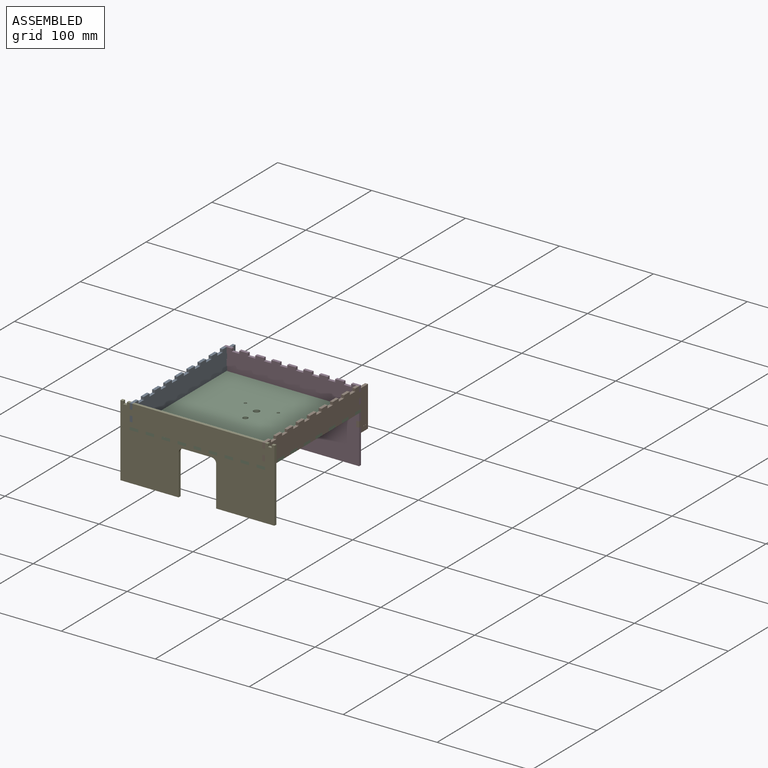
[diagram: assembled view]
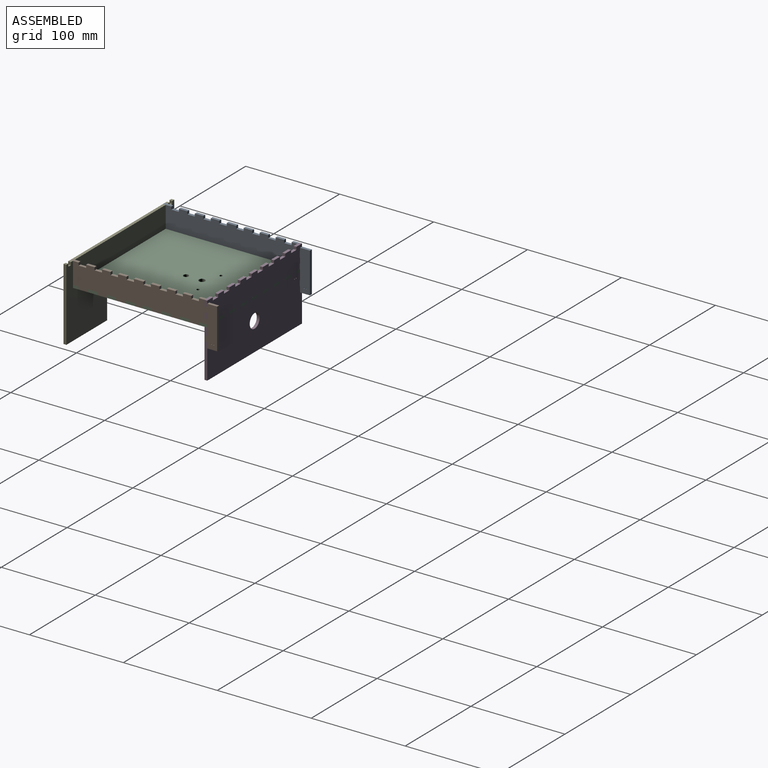
[diagram: assembled view, second angle]
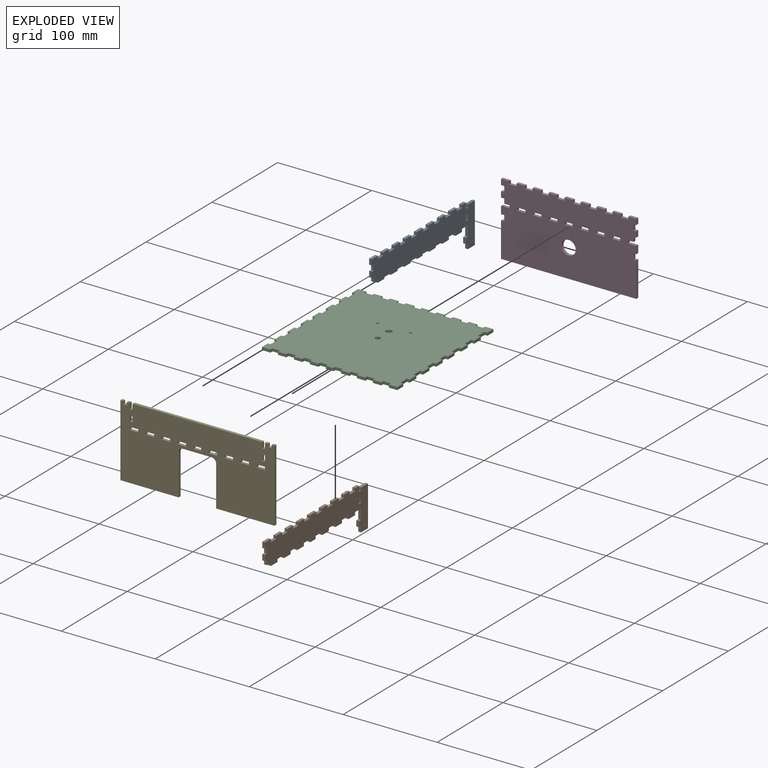
[diagram: exploded view]
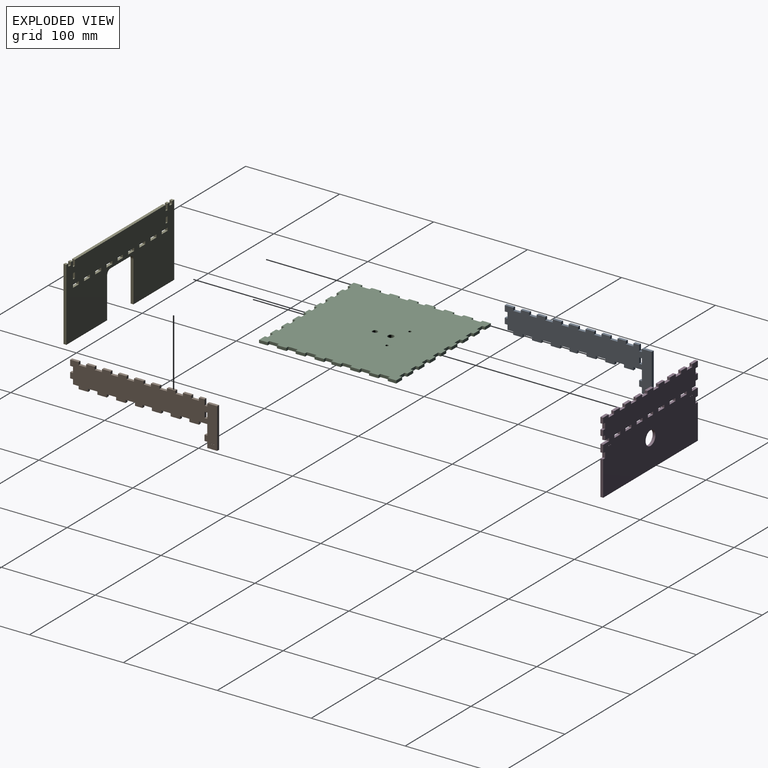
[diagram: exploded view, second angle]
ASSEMBLY  parts=5 mates=4
PART A: 88 faces, bbox 3x156.5x46 mm
  f0: plane 6x3mm, normal (0,1,0), area 18mm2, adj f1,f85,f86,f87
  f1: plane 3x3mm, normal (0,0,-1), area 9mm2, adj f0,f2,f86,f87
  f2: plane 6x3mm, normal (0,-1,0), area 18mm2, adj f1,f85,f86,f87
  f3: plane 43x3mm, normal (0,1,0), area 129mm2, adj f4,f84,f86,f87
  f4: plane 10.5x3mm, normal (0,0,1), area 31.5mm2, adj f3,f5,f86,f87
  f5: plane 3x3mm, normal (0,-1,0), area 9mm2, adj f4,f6,f86,f87
  f6: plane 3x3mm, normal (0,0,1), area 9mm2, adj f5,f7,f86,f87
  f7: plane 6x3mm, normal (0,1,0), area 18mm2, adj f6,f8,f86,f87
  f8: plane 6x3mm, normal (0,0,1), area 18mm2, adj f7,f9,f86,f87
  f9: plane 3x3mm, normal (0,-1,0), area 9mm2, adj f8,f10,f86,f87
  f10: plane 8x3mm, normal (0,0,1), area 24mm2, adj f9,f11,f86,f87
  f11: plane 3x3mm, normal (0,1,0), area 9mm2, adj f10,f12,f86,f87
  f12: plane 9x3mm, normal (0,0,1), area 27mm2, adj f11,f13,f86,f87
  f13: plane 3x3mm, normal (0,-1,0), area 9mm2, adj f12,f14,f86,f87
  f14: plane 8x3mm, normal (0,0,1), area 24mm2, adj f13,f15,f86,f87
  f15: plane 3x3mm, normal (0,1,0), area 9mm2, adj f14,f16,f86,f87
  f16: plane 9x3mm, normal (0,0,1), area 27mm2, adj f15,f17,f86,f87
  f17: plane 3x3mm, normal (0,-1,0), area 9mm2, adj f16,f18,f86,f87
  f18: plane 8x3mm, normal (0,0,1), area 24mm2, adj f17,f19,f86,f87
  f19: plane 3x3mm, normal (0,1,0), area 9mm2, adj f18,f20,f86,f87
  f20: plane 9x3mm, normal (0,0,1), area 27mm2, adj f19,f21,f86,f87
  f21: plane 3x3mm, normal (0,-1,0), area 9mm2, adj f20,f22,f86,f87
  f22: plane 8x3mm, normal (0,0,1), area 24mm2, adj f21,f23,f86,f87
  f23: plane 3x3mm, normal (0,1,0), area 9mm2, adj f22,f24,f86,f87
  f24: plane 10x3mm, normal (0,0,1), area 30mm2, adj f23,f25,f86,f87
  f25: plane 3x3mm, normal (0,-1,0), area 9mm2, adj f24,f26,f86,f87
  f26: plane 8x3mm, normal (0,0,1), area 24mm2, adj f25,f27,f86,f87
  f27: plane 3x3mm, normal (0,1,0), area 9mm2, adj f26,f28,f86,f87
  f28: plane 9x3mm, normal (0,0,1), area 27mm2, adj f27,f29,f86,f87
  f29: plane 3x3mm, normal (0,-1,0), area 9mm2, adj f28,f30,f86,f87
  f30: plane 8x3mm, normal (0,0,1), area 24mm2, adj f29,f31,f86,f87
  f31: plane 3x3mm, normal (0,1,0), area 9mm2, adj f30,f32,f86,f87
  f32: plane 9x3mm, normal (0,0,1), area 27mm2, adj f31,f33,f86,f87
  f33: plane 3x3mm, normal (0,-1,0), area 9mm2, adj f32,f34,f86,f87
  f34: plane 8x3mm, normal (0,0,1), area 24mm2, adj f33,f35,f86,f87
  f35: plane 3x3mm, normal (0,1,0), area 9mm2, adj f34,f36,f86,f87
  f36: plane 9x3mm, normal (0,0,1), area 27mm2, adj f35,f37,f86,f87
  f37: plane 3x3mm, normal (0,-1,0), area 9mm2, adj f36,f38,f86,f87
  f38: plane 8x3mm, normal (0,0,1), area 24mm2, adj f37,f39,f86,f87
  f39: plane 3x3mm, normal (0,1,0), area 9mm2, adj f38,f40,f86,f87
  f40: plane 9x3mm, normal (0,0,1), area 27mm2, adj f39,f41,f86,f87
  f41: plane 6x3mm, normal (0,-1,0), area 18mm2, adj f40,f42,f86,f87
  f42: plane 3x3mm, normal (0,0,-1), area 9mm2, adj f41,f43,f86,f87
  f43: plane 6x3mm, normal (0,-1,0), area 18mm2, adj f42,f44,f86,f87
  f44: plane 3x3mm, normal (0,0,1), area 9mm2, adj f43,f45,f86,f87
  f45: plane 6x3mm, normal (0,-1,0), area 18mm2, adj f44,f46,f86,f87
  f46: plane 3x3mm, normal (0,0,-1), area 9mm2, adj f45,f47,f86,f87
  f47: plane 5x3mm, normal (0,-1,0), area 15mm2, adj f46,f48,f86,f87
  f48: plane 6x3mm, normal (0,0,-1), area 18mm2, adj f47,f49,f86,f87
  f49: plane 3x3mm, normal (0,-1,0), area 9mm2, adj f48,f50,f86,f87
  f50: plane 10x3mm, normal (0,0,-1), area 30mm2, adj f49,f51,f86,f87
  f51: plane 3x3mm, normal (0,1,0), area 9mm2, adj f50,f52,f86,f87
  f52: plane 10x3mm, normal (0,0,-1), area 30mm2, adj f51,f53,f86,f87
  f53: plane 3x3mm, normal (0,-1,0), area 9mm2, adj f52,f54,f86,f87
  f54: plane 10x3mm, normal (0,0,-1), area 30mm2, adj f53,f55,f86,f87
  f55: plane 3x3mm, normal (0,1,0), area 9mm2, adj f54,f56,f86,f87
  f56: plane 10x3mm, normal (0,0,-1), area 30mm2, adj f55,f57,f86,f87
  f57: plane 3x3mm, normal (0,-1,0), area 9mm2, adj f56,f58,f86,f87
  f58: plane 10x3mm, normal (0,0,-1), area 30mm2, adj f57,f59,f86,f87
  f59: plane 3x3mm, normal (0,1,0), area 9mm2, adj f58,f60,f86,f87
  f60: plane 10x3mm, normal (0,0,-1), area 30mm2, adj f59,f61,f86,f87
  f61: plane 3x3mm, normal (0,-1,0), area 9mm2, adj f60,f62,f86,f87
  f62: plane 8x3mm, normal (0,0,-1), area 24mm2, adj f61,f63,f86,f87
  f63: plane 3x3mm, normal (0,1,0), area 9mm2, adj f62,f64,f86,f87
  f64: plane 10x3mm, normal (0,0,-1), area 30mm2, adj f63,f65,f86,f87
  f65: plane 3x3mm, normal (0,-1,0), area 9mm2, adj f64,f66,f86,f87
  f66: plane 10x3mm, normal (0,0,-1), area 30mm2, adj f65,f67,f86,f87
  f67: plane 3x3mm, normal (0,1,0), area 9mm2, adj f66,f68,f86,f87
  f68: plane 10x3mm, normal (0,0,-1), area 30mm2, adj f67,f69,f86,f87
  f69: plane 3x3mm, normal (0,-1,0), area 9mm2, adj f68,f70,f86,f87
  f70: plane 10x3mm, normal (0,0,-1), area 30mm2, adj f69,f71,f86,f87
  f71: plane 3x3mm, normal (0,1,0), area 9mm2, adj f70,f72,f86,f87
  f72: plane 10x3mm, normal (0,0,-1), area 30mm2, adj f71,f73,f86,f87
  f73: plane 3x3mm, normal (0,-1,0), area 9mm2, adj f72,f74,f86,f87
  f74: plane 10x3mm, normal (0,0,-1), area 30mm2, adj f73,f75,f86,f87
  f75: plane 3x3mm, normal (0,1,0), area 9mm2, adj f74,f76,f86,f87
  f76: plane 9x3mm, normal (0,0,-1), area 27mm2, adj f75,f77,f86,f87
  f77: plane 11x3mm, normal (0,-1,0), area 33mm2, adj f76,f78,f86,f87
  f78: plane 3x3mm, normal (0,0,1), area 9mm2, adj f77,f79,f86,f87
  f79: plane 6x3mm, normal (0,-1,0), area 18mm2, adj f78,f80,f86,f87
  f80: plane 3x3mm, normal (0,0,-1), area 9mm2, adj f79,f81,f86,f87
  f81: plane 6x3mm, normal (0,-1,0), area 18mm2, adj f80,f84,f86,f87
  f82: cylinder r=0.5mm len=3mm, axis (1,0,0), area 9.4mm2, adj f86,f87
  f83: cylinder r=0.5mm len=3mm, axis (1,0,0), area 9.4mm2, adj f86,f87
  f84: plane 10.5x3mm, normal (0,0,-1), area 31.5mm2, adj f3,f81,f86,f87
  f85: plane 3x3mm, normal (0,0,1), area 9mm2, adj f0,f2,f86,f87
  f86: plane 156.5x46mm, normal (1,0,0), area 3768.9mm2, adj f0,f1,f2,f3,f4,f5,f6,f7
  f87: plane 156.5x46mm, normal (-1,0,0), area 3768.9mm2, adj f0,f1,f2,f3,f4,f5,f6,f7
PART B: same geometry as A
PART C: 130 faces, bbox 144x146x3 mm
  f0: plane 10x3mm, normal (-1,0,0), area 30mm2, adj f1,f127,f128,f129
  f1: plane 3x3mm, normal (0,1,0), area 9mm2, adj f0,f2,f128,f129
  f2: plane 10x3mm, normal (-1,0,0), area 30mm2, adj f1,f3,f128,f129
  f3: plane 3x3mm, normal (0,-1,0), area 9mm2, adj f2,f4,f128,f129
  f4: plane 10x3mm, normal (-1,0,0), area 30mm2, adj f3,f5,f128,f129
  f5: plane 3x3mm, normal (0,1,0), area 9mm2, adj f4,f6,f128,f129
  f6: plane 10x3mm, normal (-1,0,0), area 30mm2, adj f5,f7,f128,f129
  f7: plane 3x3mm, normal (0,-1,0), area 9mm2, adj f6,f8,f128,f129
  f8: plane 10x3mm, normal (-1,0,0), area 30mm2, adj f7,f9,f128,f129
  f9: plane 3x3mm, normal (0,1,0), area 9mm2, adj f8,f10,f128,f129
  f10: plane 10x3mm, normal (-1,0,0), area 30mm2, adj f9,f11,f128,f129
  f11: plane 3x3mm, normal (0,-1,0), area 9mm2, adj f10,f12,f128,f129
  f12: plane 8x3mm, normal (-1,0,0), area 24mm2, adj f11,f13,f128,f129
  f13: plane 3x3mm, normal (0,1,0), area 9mm2, adj f12,f14,f128,f129
  f14: plane 10x3mm, normal (-1,0,0), area 30mm2, adj f13,f15,f128,f129
  f15: plane 3x3mm, normal (0,-1,0), area 9mm2, adj f14,f16,f128,f129
  f16: plane 10x3mm, normal (-1,0,0), area 30mm2, adj f15,f17,f128,f129
  f17: plane 3x3mm, normal (0,1,0), area 9mm2, adj f16,f18,f128,f129
  f18: plane 10x3mm, normal (-1,0,0), area 30mm2, adj f17,f19,f128,f129
  f19: plane 3x3mm, normal (0,-1,0), area 9mm2, adj f18,f20,f128,f129
  f20: plane 10x3mm, normal (-1,0,0), area 30mm2, adj f19,f21,f128,f129
  f21: plane 3x3mm, normal (0,1,0), area 9mm2, adj f20,f22,f128,f129
  f22: plane 10x3mm, normal (-1,0,0), area 30mm2, adj f21,f23,f128,f129
  f23: plane 3x3mm, normal (0,-1,0), area 9mm2, adj f22,f24,f128,f129
  f24: plane 10x3mm, normal (-1,0,0), area 30mm2, adj f23,f25,f128,f129
  f25: plane 3x3mm, normal (0,1,0), area 9mm2, adj f24,f26,f128,f129
  f26: plane 9x3mm, normal (-1,0,0), area 27mm2, adj f25,f27,f128,f129
  f27: plane 9x3mm, normal (0,-1,0), area 27mm2, adj f26,f28,f128,f129
  f28: plane 3x3mm, normal (1,0,0), area 9mm2, adj f27,f29,f128,f129
  f29: plane 8x3mm, normal (0,-1,0), area 24mm2, adj f28,f30,f128,f129
  f30: plane 3x3mm, normal (-1,0,0), area 9mm2, adj f29,f31,f128,f129
  f31: plane 9x3mm, normal (0,-1,0), area 27mm2, adj f30,f32,f128,f129
  f32: plane 3x3mm, normal (1,0,0), area 9mm2, adj f31,f33,f128,f129
  f33: plane 8x3mm, normal (0,-1,0), area 24mm2, adj f32,f34,f128,f129
  f34: plane 3x3mm, normal (-1,0,0), area 9mm2, adj f33,f35,f128,f129
  f35: plane 9x3mm, normal (0,-1,0), area 27mm2, adj f34,f36,f128,f129
  f36: plane 3x3mm, normal (1,0,0), area 9mm2, adj f35,f37,f128,f129
  f37: plane 8x3mm, normal (0,-1,0), area 24mm2, adj f36,f38,f128,f129
  f38: plane 3x3mm, normal (-1,0,0), area 9mm2, adj f37,f39,f128,f129
  f39: plane 9x3mm, normal (0,-1,0), area 27mm2, adj f38,f40,f128,f129
  f40: plane 3x3mm, normal (1,0,0), area 9mm2, adj f39,f41,f128,f129
  f41: plane 8x3mm, normal (0,-1,0), area 24mm2, adj f40,f42,f128,f129
  f42: plane 3x3mm, normal (-1,0,0), area 9mm2, adj f41,f43,f128,f129
  f43: plane 8x3mm, normal (0,-1,0), area 24mm2, adj f42,f44,f128,f129
  f44: plane 3x3mm, normal (1,0,0), area 9mm2, adj f43,f45,f128,f129
  f45: plane 8x3mm, normal (0,-1,0), area 24mm2, adj f44,f46,f128,f129
  f46: plane 3x3mm, normal (-1,0,0), area 9mm2, adj f45,f47,f128,f129
  f47: plane 9x3mm, normal (0,-1,0), area 27mm2, adj f46,f48,f128,f129
  f48: plane 3x3mm, normal (1,0,0), area 9mm2, adj f47,f49,f128,f129
  f49: plane 8x3mm, normal (0,-1,0), area 24mm2, adj f48,f50,f128,f129
  f50: plane 3x3mm, normal (-1,0,0), area 9mm2, adj f49,f51,f128,f129
  f51: plane 9x3mm, normal (0,-1,0), area 27mm2, adj f50,f52,f128,f129
  f52: plane 3x3mm, normal (1,0,0), area 9mm2, adj f51,f53,f128,f129
  f53: plane 8x3mm, normal (0,-1,0), area 24mm2, adj f52,f54,f128,f129
  f54: plane 3x3mm, normal (-1,0,0), area 9mm2, adj f53,f55,f128,f129
  f55: plane 9x3mm, normal (0,-1,0), area 27mm2, adj f54,f56,f128,f129
  f56: plane 3x3mm, normal (1,0,0), area 9mm2, adj f55,f57,f128,f129
  f57: plane 8x3mm, normal (0,-1,0), area 24mm2, adj f56,f58,f128,f129
  f58: plane 3x3mm, normal (-1,0,0), area 9mm2, adj f57,f59,f128,f129
  f59: plane 9x3mm, normal (0,-1,0), area 27mm2, adj f58,f60,f128,f129
  f60: plane 9x3mm, normal (1,0,0), area 27mm2, adj f59,f61,f128,f129
  f61: plane 3x3mm, normal (0,1,0), area 9mm2, adj f60,f62,f128,f129
  f62: plane 10x3mm, normal (1,0,0), area 30mm2, adj f61,f63,f128,f129
  f63: plane 3x3mm, normal (0,-1,0), area 9mm2, adj f62,f64,f128,f129
  f64: plane 10x3mm, normal (1,0,0), area 30mm2, adj f63,f65,f128,f129
  f65: plane 3x3mm, normal (0,1,0), area 9mm2, adj f64,f66,f128,f129
  f66: plane 10x3mm, normal (1,0,0), area 30mm2, adj f65,f67,f128,f129
  f67: plane 3x3mm, normal (0,-1,0), area 9mm2, adj f66,f68,f128,f129
  f68: plane 10x3mm, normal (1,0,0), area 30mm2, adj f67,f69,f128,f129
  f69: plane 3x3mm, normal (0,1,0), area 9mm2, adj f68,f70,f128,f129
  f70: plane 10x3mm, normal (1,0,0), area 30mm2, adj f69,f71,f128,f129
  f71: plane 3x3mm, normal (0,-1,0), area 9mm2, adj f70,f72,f128,f129
  f72: plane 10x3mm, normal (1,0,0), area 30mm2, adj f71,f73,f128,f129
  f73: plane 3x3mm, normal (0,1,0), area 9mm2, adj f72,f74,f128,f129
  f74: plane 8x3mm, normal (1,0,0), area 24mm2, adj f73,f75,f128,f129
  f75: plane 3x3mm, normal (0,-1,0), area 9mm2, adj f74,f76,f128,f129
  f76: plane 10x3mm, normal (1,0,0), area 30mm2, adj f75,f77,f128,f129
  f77: plane 3x3mm, normal (0,1,0), area 9mm2, adj f76,f78,f128,f129
  f78: plane 10x3mm, normal (1,0,0), area 30mm2, adj f77,f79,f128,f129
  f79: plane 3x3mm, normal (0,-1,0), area 9mm2, adj f78,f80,f128,f129
  f80: plane 10x3mm, normal (1,0,0), area 30mm2, adj f79,f81,f128,f129
  f81: plane 3x3mm, normal (0,1,0), area 9mm2, adj f80,f82,f128,f129
  f82: plane 10x3mm, normal (1,0,0), area 30mm2, adj f81,f83,f128,f129
  f83: plane 3x3mm, normal (0,-1,0), area 9mm2, adj f82,f84,f128,f129
  f84: plane 10x3mm, normal (1,0,0), area 30mm2, adj f83,f85,f128,f129
  f85: plane 3x3mm, normal (0,1,0), area 9mm2, adj f84,f86,f128,f129
  f86: plane 10x3mm, normal (1,0,0), area 30mm2, adj f85,f87,f128,f129
  f87: plane 3x3mm, normal (0,-1,0), area 9mm2, adj f86,f88,f128,f129
  f88: plane 9x3mm, normal (1,0,0), area 27mm2, adj f87,f89,f128,f129
  f89: plane 9x3mm, normal (0,1,0), area 27mm2, adj f88,f90,f128,f129
  f90: plane 3x3mm, normal (-1,0,0), area 9mm2, adj f89,f91,f128,f129
  f91: plane 8x3mm, normal (0,1,0), area 24mm2, adj f90,f92,f128,f129
  f92: plane 3x3mm, normal (1,0,0), area 9mm2, adj f91,f93,f128,f129
  f93: plane 9x3mm, normal (0,1,0), area 27mm2, adj f92,f94,f128,f129
  f94: plane 3x3mm, normal (-1,0,0), area 9mm2, adj f93,f95,f128,f129
  f95: plane 8x3mm, normal (0,1,0), area 24mm2, adj f94,f96,f128,f129
  f96: plane 3x3mm, normal (1,0,0), area 9mm2, adj f95,f97,f128,f129
  f97: plane 9x3mm, normal (0,1,0), area 27mm2, adj f96,f98,f128,f129
  f98: plane 3x3mm, normal (-1,0,0), area 9mm2, adj f97,f99,f128,f129
  f99: plane 8x3mm, normal (0,1,0), area 24mm2, adj f98,f100,f128,f129
  f100: plane 3x3mm, normal (1,0,0), area 9mm2, adj f99,f101,f128,f129
  f101: plane 9x3mm, normal (0,1,0), area 27mm2, adj f100,f102,f128,f129
  f102: plane 3x3mm, normal (-1,0,0), area 9mm2, adj f101,f103,f128,f129
  f103: plane 8x3mm, normal (0,1,0), area 24mm2, adj f102,f104,f128,f129
  f104: plane 3x3mm, normal (1,0,0), area 9mm2, adj f103,f105,f128,f129
  f105: plane 8x3mm, normal (0,1,0), area 24mm2, adj f104,f106,f128,f129
  f106: plane 3x3mm, normal (-1,0,0), area 9mm2, adj f105,f107,f128,f129
  f107: plane 8x3mm, normal (0,1,0), area 24mm2, adj f106,f108,f128,f129
  f108: plane 3x3mm, normal (1,0,0), area 9mm2, adj f107,f109,f128,f129
  f109: plane 9x3mm, normal (0,1,0), area 27mm2, adj f108,f110,f128,f129
  f110: plane 3x3mm, normal (-1,0,0), area 9mm2, adj f109,f111,f128,f129
  f111: plane 8x3mm, normal (0,1,0), area 24mm2, adj f110,f112,f128,f129
  f112: plane 3x3mm, normal (1,0,0), area 9mm2, adj f111,f113,f128,f129
  f113: plane 9x3mm, normal (0,1,0), area 27mm2, adj f112,f114,f128,f129
  f114: plane 3x3mm, normal (-1,0,0), area 9mm2, adj f113,f115,f128,f129
  f115: plane 8x3mm, normal (0,1,0), area 24mm2, adj f114,f116,f128,f129
  f116: plane 3x3mm, normal (1,0,0), area 9mm2, adj f115,f117,f128,f129
  f117: plane 9x3mm, normal (0,1,0), area 27mm2, adj f116,f118,f128,f129
  f118: plane 3x3mm, normal (-1,0,0), area 9mm2, adj f117,f119,f128,f129
  f119: plane 8x3mm, normal (0,1,0), area 24mm2, adj f118,f120,f128,f129
  f120: plane 3x3mm, normal (1,0,0), area 9mm2, adj f119,f121,f128,f129
  f121: plane 9x3mm, normal (0,1,0), area 27mm2, adj f120,f122,f128,f129
  f122: plane 9x3mm, normal (-1,0,0), area 27mm2, adj f121,f127,f128,f129
  f123: cylinder r=1.5mm len=3mm, axis (0,0,1), area 28.3mm2, adj f128,f129
  f124: cylinder r=1.5mm len=3mm, axis (0,0,1), area 28.3mm2, adj f128,f129
  f125: cylinder r=2.75mm len=5.5mm, axis (0,0,1), area 51.8mm2, adj f128,f129
  f126: cylinder r=3.25mm len=6.5mm, axis (0,0,1), area 61.3mm2, adj f128,f129
  f127: plane 3x3mm, normal (0,-1,0), area 9mm2, adj f0,f122,f128,f129
  f128: plane 146x144mm, normal (0,0,1), area 20160.9mm2, adj f0,f1,f2,f3,f4,f5,f6,f7
  f129: plane 146x144mm, normal (0,0,-1), area 20160.9mm2, adj f0,f1,f2,f3,f4,f5,f6,f7
PART D: 99 faces, bbox 144x3x77 mm
  f0: plane 6x3mm, normal (-1,0,0), area 18mm2, adj f1,f96,f97,f98
  f1: plane 3.5x3mm, normal (0,0,-1), area 10.5mm2, adj f0,f2,f97,f98
  f2: plane 6x3mm, normal (-1,0,0), area 18mm2, adj f1,f3,f97,f98
  f3: plane 3.5x3mm, normal (0,0,1), area 10.5mm2, adj f2,f4,f97,f98
  f4: plane 6x3mm, normal (-1,0,0), area 18mm2, adj f3,f5,f97,f98
  f5: plane 3.5x3mm, normal (0,0,-1), area 10.5mm2, adj f4,f6,f97,f98
  f6: plane 5x3mm, normal (-1,0,0), area 15mm2, adj f5,f7,f97,f98
  f7: plane 5.5x3mm, normal (0,0,-1), area 16.5mm2, adj f6,f8,f97,f98
  f8: plane 3x3mm, normal (-1,0,0), area 9mm2, adj f7,f9,f97,f98
  f9: plane 9x3mm, normal (0,0,1), area 27mm2, adj f8,f10,f97,f98
  f10: plane 8x3mm, normal (-1,0,0), area 24mm2, adj f9,f11,f97,f98
  f11: plane 3.5x3mm, normal (0,0,-1), area 10.5mm2, adj f10,f12,f97,f98
  f12: plane 6x3mm, normal (-1,0,0), area 18mm2, adj f11,f13,f97,f98
  f13: plane 3.5x3mm, normal (0,0,1), area 10.5mm2, adj f12,f14,f97,f98
  f14: plane 37x3mm, normal (-1,0,0), area 111mm2, adj f13,f15,f97,f98
  f15: plane 144x3mm, normal (0,0,-1), area 432mm2, adj f14,f16,f97,f98
  f16: plane 37x3mm, normal (1,0,0), area 111mm2, adj f15,f17,f97,f98
  f17: plane 3x3mm, normal (0,0,1), area 9mm2, adj f16,f18,f97,f98
  f18: plane 6x3mm, normal (1,0,0), area 18mm2, adj f17,f19,f97,f98
  f19: plane 3x3mm, normal (0,0,-1), area 9mm2, adj f18,f20,f97,f98
  f20: plane 8x3mm, normal (1,0,0), area 24mm2, adj f19,f21,f97,f98
  f21: plane 9x3mm, normal (0,0,1), area 27mm2, adj f20,f22,f97,f98
  f22: plane 3x3mm, normal (1,0,0), area 9mm2, adj f21,f23,f97,f98
  f23: plane 6x3mm, normal (0,0,-1), area 18mm2, adj f22,f24,f97,f98
  f24: plane 5x3mm, normal (1,0,0), area 15mm2, adj f23,f25,f97,f98
  f25: plane 3x3mm, normal (0,0,-1), area 9mm2, adj f24,f26,f97,f98
  f26: plane 6x3mm, normal (1,0,0), area 18mm2, adj f25,f27,f97,f98
  f27: plane 3x3mm, normal (0,0,1), area 9mm2, adj f26,f28,f97,f98
  f28: plane 6x3mm, normal (1,0,0), area 18mm2, adj f27,f29,f97,f98
  f29: plane 3x3mm, normal (0,0,-1), area 9mm2, adj f28,f30,f97,f98
  f30: plane 6x3mm, normal (1,0,0), area 18mm2, adj f29,f31,f97,f98
  f31: plane 8.5x3mm, normal (0,0,1), area 25.5mm2, adj f30,f32,f97,f98
  f32: plane 3x3mm, normal (-1,0,0), area 9mm2, adj f31,f33,f97,f98
  f33: plane 8x3mm, normal (0,0,1), area 24mm2, adj f32,f34,f97,f98
  f34: plane 3x3mm, normal (1,0,0), area 9mm2, adj f33,f35,f97,f98
  f35: plane 9x3mm, normal (0,0,1), area 27mm2, adj f34,f36,f97,f98
  f36: plane 3x3mm, normal (-1,0,0), area 9mm2, adj f35,f37,f97,f98
  f37: plane 8x3mm, normal (0,0,1), area 24mm2, adj f36,f38,f97,f98
  f38: plane 3x3mm, normal (1,0,0), area 9mm2, adj f37,f39,f97,f98
  f39: plane 9x3mm, normal (0,0,1), area 27mm2, adj f38,f40,f97,f98
  f40: plane 3x3mm, normal (-1,0,0), area 9mm2, adj f39,f41,f97,f98
  f41: plane 8x3mm, normal (0,0,1), area 24mm2, adj f40,f42,f97,f98
  f42: plane 3x3mm, normal (1,0,0), area 9mm2, adj f41,f43,f97,f98
  f43: plane 9x3mm, normal (0,0,1), area 27mm2, adj f42,f44,f97,f98
  f44: plane 3x3mm, normal (-1,0,0), area 9mm2, adj f43,f45,f97,f98
  f45: plane 8x3mm, normal (0,0,1), area 24mm2, adj f44,f46,f97,f98
  f46: plane 3x3mm, normal (1,0,0), area 9mm2, adj f45,f47,f97,f98
  f47: plane 9x3mm, normal (0,0,1), area 27mm2, adj f46,f48,f97,f98
  f48: plane 3x3mm, normal (-1,0,0), area 9mm2, adj f47,f49,f97,f98
  f49: plane 8x3mm, normal (0,0,1), area 24mm2, adj f48,f50,f97,f98
  f50: plane 3x3mm, normal (1,0,0), area 9mm2, adj f49,f51,f97,f98
  f51: plane 9x3mm, normal (0,0,1), area 27mm2, adj f50,f52,f97,f98
  f52: plane 3x3mm, normal (-1,0,0), area 9mm2, adj f51,f53,f97,f98
  f53: plane 8x3mm, normal (0,0,1), area 24mm2, adj f52,f54,f97,f98
  f54: plane 3x3mm, normal (1,0,0), area 9mm2, adj f53,f55,f97,f98
  f55: plane 9x3mm, normal (0,0,1), area 27mm2, adj f54,f56,f97,f98
  f56: plane 3x3mm, normal (-1,0,0), area 9mm2, adj f55,f57,f97,f98
  f57: plane 8x3mm, normal (0,0,1), area 24mm2, adj f56,f58,f97,f98
  f58: plane 3x3mm, normal (1,0,0), area 9mm2, adj f57,f59,f97,f98
  f59: plane 9x3mm, normal (0,0,1), area 27mm2, adj f58,f60,f97,f98
  f60: plane 3x3mm, normal (-1,0,0), area 9mm2, adj f59,f61,f97,f98
  f61: plane 8x3mm, normal (0,0,1), area 24mm2, adj f60,f62,f97,f98
  f62: plane 3x3mm, normal (1,0,0), area 9mm2, adj f61,f96,f97,f98
  f63: plane 9x3mm, normal (0,0,-1), area 27mm2, adj f64,f95,f97,f98
  f64: plane 3x3mm, normal (-1,0,0), area 9mm2, adj f63,f65,f97,f98
  f65: plane 9x3mm, normal (0,0,1), area 27mm2, adj f64,f95,f97,f98
  f66: plane 9x3mm, normal (0,0,-1), area 27mm2, adj f67,f94,f97,f98
  f67: plane 3x3mm, normal (-1,0,0), area 9mm2, adj f66,f68,f97,f98
  f68: plane 9x3mm, normal (0,0,1), area 27mm2, adj f67,f94,f97,f98
  f69: plane 9x3mm, normal (0,0,-1), area 27mm2, adj f70,f93,f97,f98
  f70: plane 3x3mm, normal (-1,0,0), area 9mm2, adj f69,f71,f97,f98
  f71: plane 9x3mm, normal (0,0,1), area 27mm2, adj f70,f93,f97,f98
  f72: plane 8x3mm, normal (0,0,-1), area 24mm2, adj f73,f92,f97,f98
  f73: plane 3x3mm, normal (-1,0,0), area 9mm2, adj f72,f74,f97,f98
  f74: plane 8x3mm, normal (0,0,1), area 24mm2, adj f73,f92,f97,f98
  f75: plane 9x3mm, normal (0,0,-1), area 27mm2, adj f76,f91,f97,f98
  f76: plane 3x3mm, normal (-1,0,0), area 9mm2, adj f75,f77,f97,f98
  f77: plane 9x3mm, normal (0,0,1), area 27mm2, adj f76,f91,f97,f98
  f78: plane 9x3mm, normal (0,0,-1), area 27mm2, adj f79,f90,f97,f98
  f79: plane 3x3mm, normal (-1,0,0), area 9mm2, adj f78,f80,f97,f98
  f80: plane 9x3mm, normal (0,0,1), area 27mm2, adj f79,f90,f97,f98
  f81: plane 9x3mm, normal (0,0,-1), area 27mm2, adj f82,f89,f97,f98
  f82: plane 3x3mm, normal (-1,0,0), area 9mm2, adj f81,f83,f97,f98
  f83: plane 9x3mm, normal (0,0,1), area 27mm2, adj f82,f89,f97,f98
  f84: cylinder r=0.5mm len=3mm, axis (0,-1,0), area 9.4mm2, adj f97,f98
  f85: cylinder r=0.5mm len=3mm, axis (0,-1,0), area 9.4mm2, adj f97,f98
  f86: cylinder r=0.5mm len=3mm, axis (0,-1,0), area 9.4mm2, adj f97,f98
  f87: cylinder r=0.5mm len=3mm, axis (0,-1,0), area 9.4mm2, adj f97,f98
  f88: cylinder r=7.5mm len=15mm, axis (0,-1,0), area 141.4mm2, adj f97,f98
  f89: plane 3x3mm, normal (1,0,0), area 9mm2, adj f81,f83,f97,f98
  f90: plane 3x3mm, normal (1,0,0), area 9mm2, adj f78,f80,f97,f98
  f91: plane 3x3mm, normal (1,0,0), area 9mm2, adj f75,f77,f97,f98
  f92: plane 3x3mm, normal (1,0,0), area 9mm2, adj f72,f74,f97,f98
  f93: plane 3x3mm, normal (1,0,0), area 9mm2, adj f69,f71,f97,f98
  f94: plane 3x3mm, normal (1,0,0), area 9mm2, adj f66,f68,f97,f98
  f95: plane 3x3mm, normal (1,0,0), area 9mm2, adj f63,f65,f97,f98
  f96: plane 8.5x3mm, normal (0,0,1), area 25.5mm2, adj f0,f62,f97,f98
  f97: plane 144x77mm, normal (0,-1,0), area 10365.6mm2, adj f0,f1,f2,f3,f4,f5,f6,f7
  f98: plane 144x77mm, normal (0,1,0), area 10365.6mm2, adj f0,f1,f2,f3,f4,f5,f6,f7
PART E: 72 faces, bbox 164x3x77 mm
  f0: plane 3x3mm, normal (1,0,0), area 9mm2, adj f1,f69,f70,f71
  f1: plane 9x3mm, normal (0,0,-1), area 27mm2, adj f0,f2,f70,f71
  f2: plane 3x3mm, normal (-1,0,0), area 9mm2, adj f1,f69,f70,f71
  f3: plane 3x3mm, normal (1,0,0), area 9mm2, adj f4,f68,f70,f71
  f4: plane 9x3mm, normal (0,0,-1), area 27mm2, adj f3,f5,f70,f71
  f5: plane 3x3mm, normal (-1,0,0), area 9mm2, adj f4,f68,f70,f71
  f6: plane 3x3mm, normal (1,0,0), area 9mm2, adj f7,f67,f70,f71
  f7: plane 9x3mm, normal (0,0,-1), area 27mm2, adj f6,f8,f70,f71
  f8: plane 3x3mm, normal (-1,0,0), area 9mm2, adj f7,f67,f70,f71
  f9: plane 3x3mm, normal (1,0,0), area 9mm2, adj f10,f66,f70,f71
  f10: plane 8x3mm, normal (0,0,-1), area 24mm2, adj f9,f11,f70,f71
  f11: plane 3x3mm, normal (-1,0,0), area 9mm2, adj f10,f66,f70,f71
  f12: plane 3x3mm, normal (1,0,0), area 9mm2, adj f13,f65,f70,f71
  f13: plane 9x3mm, normal (0,0,-1), area 27mm2, adj f12,f14,f70,f71
  f14: plane 3x3mm, normal (-1,0,0), area 9mm2, adj f13,f65,f70,f71
  f15: plane 3x3mm, normal (1,0,0), area 9mm2, adj f16,f64,f70,f71
  f16: plane 9x3mm, normal (0,0,-1), area 27mm2, adj f15,f17,f70,f71
  f17: plane 3x3mm, normal (-1,0,0), area 9mm2, adj f16,f64,f70,f71
  f18: plane 3x3mm, normal (1,0,0), area 9mm2, adj f19,f63,f70,f71
  f19: plane 3x3mm, normal (0,0,1), area 9mm2, adj f18,f20,f70,f71
  f20: plane 77x3mm, normal (-1,0,0), area 231mm2, adj f19,f21,f70,f71
  f21: plane 62x3mm, normal (0,0,-1), area 186mm2, adj f20,f22,f70,f71
  f22: plane 43x3mm, normal (1,0,0), area 129mm2, adj f21,f23,f70,f71
  f23: cylinder r=5mm len=5mm, axis (0,-1,0), area 23.6mm2, adj f22,f24,f70,f71
  f24: plane 30x3mm, normal (0,0,-1), area 90mm2, adj f23,f25,f70,f71
  f25: cylinder r=5mm len=5mm, axis (0,-1,0), area 23.6mm2, adj f24,f26,f70,f71
  f26: plane 43x3mm, normal (-1,0,0), area 129mm2, adj f25,f27,f70,f71
  f27: plane 62x3mm, normal (0,0,-1), area 186mm2, adj f26,f28,f70,f71
  f28: plane 77x3mm, normal (1,0,0), area 231mm2, adj f27,f29,f70,f71
  f29: plane 3x3mm, normal (0,0,1), area 9mm2, adj f28,f30,f70,f71
  f30: plane 3x3mm, normal (-1,0,0), area 9mm2, adj f29,f31,f70,f71
  f31: plane 4x3mm, normal (0,0,1), area 12mm2, adj f30,f32,f70,f71
  f32: plane 3x3mm, normal (1,0,0), area 9mm2, adj f31,f33,f70,f71
  f33: plane 3x3mm, normal (0,0,1), area 9mm2, adj f32,f34,f70,f71
  f34: plane 6x3mm, normal (-1,0,0), area 18mm2, adj f33,f35,f70,f71
  f35: plane 3x3mm, normal (0,0,1), area 9mm2, adj f34,f36,f70,f71
  f36: plane 6x3mm, normal (1,0,0), area 18mm2, adj f35,f37,f70,f71
  f37: plane 138x3mm, normal (0,0,1), area 414mm2, adj f36,f38,f70,f71
  f38: plane 6x3mm, normal (-1,0,0), area 18mm2, adj f37,f39,f70,f71
  f39: plane 3x3mm, normal (0,0,1), area 9mm2, adj f38,f40,f70,f71
  f40: plane 6x3mm, normal (1,0,0), area 18mm2, adj f39,f41,f70,f71
  f41: plane 3x3mm, normal (0,0,1), area 9mm2, adj f40,f42,f70,f71
  f42: plane 3x3mm, normal (-1,0,0), area 9mm2, adj f41,f63,f70,f71
  f43: plane 9x3mm, normal (0,0,-1), area 27mm2, adj f44,f62,f70,f71
  f44: plane 3x3mm, normal (-1,0,0), area 9mm2, adj f43,f45,f70,f71
  f45: plane 9x3mm, normal (0,0,1), area 27mm2, adj f44,f62,f70,f71
  f46: plane 9x3mm, normal (0,0,1), area 27mm2, adj f47,f61,f70,f71
  f47: plane 3x3mm, normal (1,0,0), area 9mm2, adj f46,f48,f70,f71
  f48: plane 9x3mm, normal (0,0,-1), area 27mm2, adj f47,f61,f70,f71
  f49: plane 9x3mm, normal (0,0,1), area 27mm2, adj f50,f60,f70,f71
  f50: plane 3x3mm, normal (1,0,0), area 9mm2, adj f49,f51,f70,f71
  f51: plane 9x3mm, normal (0,0,-1), area 27mm2, adj f50,f60,f70,f71
  f52: plane 3x3mm, normal (0,0,-1), area 9mm2, adj f53,f59,f70,f71
  f53: plane 6x3mm, normal (-1,0,0), area 18mm2, adj f52,f54,f70,f71
  f54: plane 3x3mm, normal (0,0,1), area 9mm2, adj f53,f59,f70,f71
  f55: plane 3x3mm, normal (0,0,-1), area 9mm2, adj f56,f58,f70,f71
  f56: plane 6x3mm, normal (-1,0,0), area 18mm2, adj f55,f57,f70,f71
  f57: plane 3x3mm, normal (0,0,1), area 9mm2, adj f56,f58,f70,f71
  f58: plane 6x3mm, normal (1,0,0), area 18mm2, adj f55,f57,f70,f71
  f59: plane 6x3mm, normal (1,0,0), area 18mm2, adj f52,f54,f70,f71
  f60: plane 3x3mm, normal (-1,0,0), area 9mm2, adj f49,f51,f70,f71
  f61: plane 3x3mm, normal (-1,0,0), area 9mm2, adj f46,f48,f70,f71
  f62: plane 3x3mm, normal (1,0,0), area 9mm2, adj f43,f45,f70,f71
  f63: plane 4x3mm, normal (0,0,1), area 12mm2, adj f18,f42,f70,f71
  f64: plane 9x3mm, normal (0,0,1), area 27mm2, adj f15,f17,f70,f71
  f65: plane 9x3mm, normal (0,0,1), area 27mm2, adj f12,f14,f70,f71
  f66: plane 8x3mm, normal (0,0,1), area 24mm2, adj f9,f11,f70,f71
  f67: plane 9x3mm, normal (0,0,1), area 27mm2, adj f6,f8,f70,f71
  f68: plane 9x3mm, normal (0,0,1), area 27mm2, adj f3,f5,f70,f71
  f69: plane 9x3mm, normal (0,0,1), area 27mm2, adj f0,f2,f70,f71
  f70: plane 164x77mm, normal (0,-1,0), area 10382.7mm2, adj f0,f1,f2,f3,f4,f5,f6,f7
  f71: plane 164x77mm, normal (0,1,0), area 10382.7mm2, adj f0,f1,f2,f3,f4,f5,f6,f7
PLACE A t=(-42.32,37.16,22.39)mm
PLACE B t=(98.68,37.16,22.39)mm
PLACE C t=(29.68,37.45,11.38)mm
PLACE D t=(17.18,110.45,-6.31)mm
PLACE E t=(-10.95,-32.55,-17.6)mm
MATE fastened A.f41 <-> E.f70  axis (0,-1,0) through (-39.32,-35.55,37.38)mm
MATE fastened B.f41 <-> E.f70  axis (0,-1,0) through (98.68,-35.55,37.38)mm
MATE fastened C.f59 <-> E.f70  axis (0,-1,0) through (101.68,-35.55,11.38)mm
MATE fastened C.f117 <-> D.f98  axis (0,1,0) through (-16.32,110.45,14.38)mm
